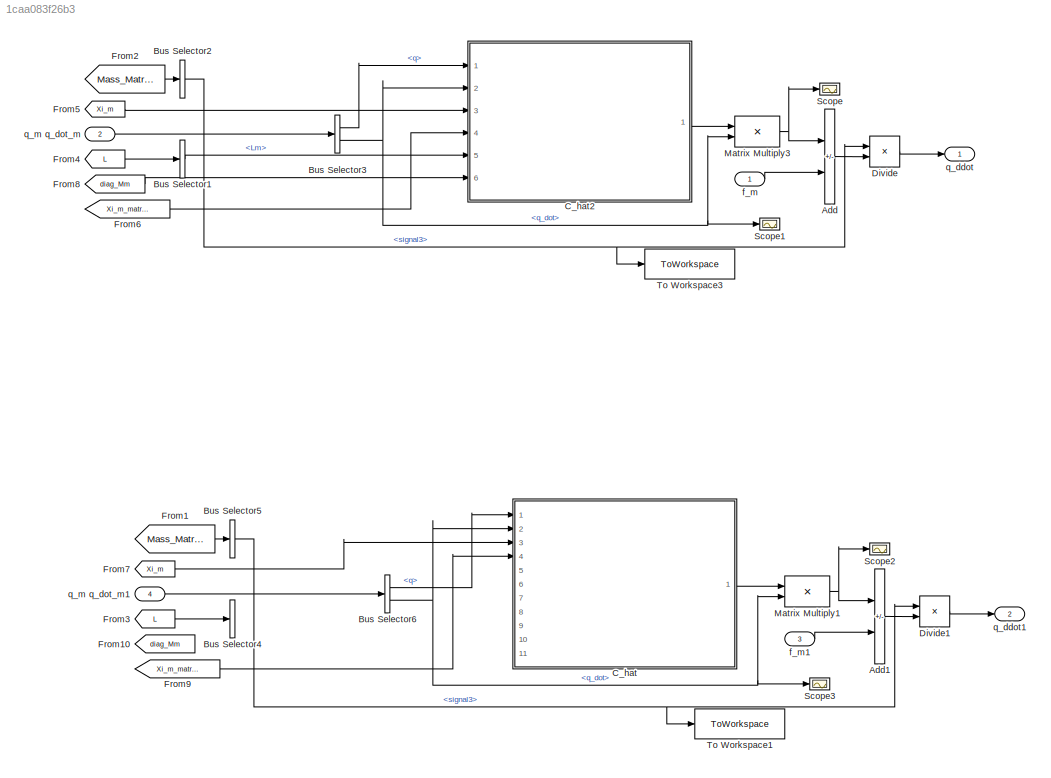
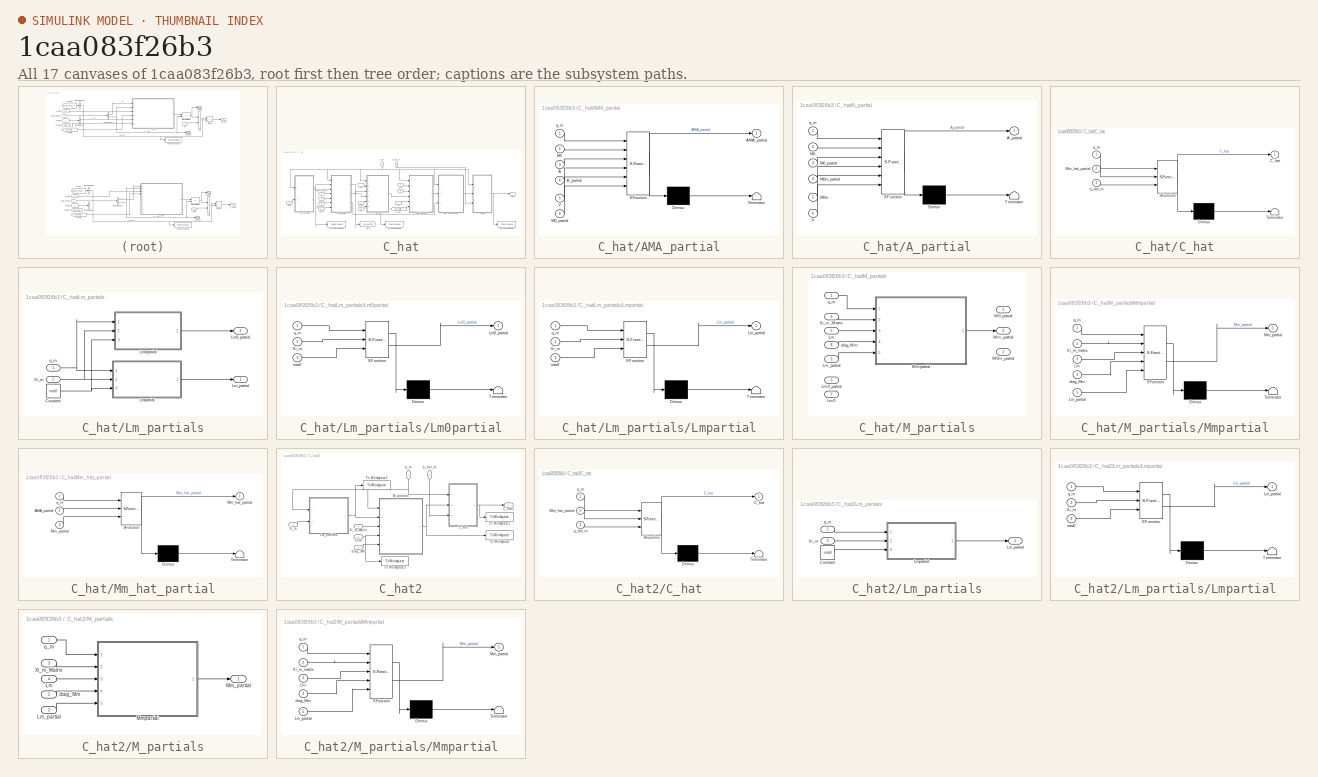
[diagram: thumbnail index - all 17 canvases of the model, root first then tree order]
MODEL slx_1caa083f26b3
KIND model
CONFIG AbsTol = auto
CONFIG EnableMultiTasking = off
CONFIG FixedStep = auto
CONFIG MaxStep = auto
CONFIG MinStep = auto
CONFIG RelTol = 1e-3
CONFIG SampleTimeConstraint = Unconstrained
CONFIG SolverName = VariableStepAuto
CONFIG StartTime = 0.0
CONFIG StopTime = 10.0
BLOCK [Sum] Add
  IconShape = rectangular
  Inputs = -+
  Ports = [2, 1]
BLOCK [Sum] Add1
  IconShape = rectangular
  Inputs = -+
  Ports = [2, 1]
BLOCK [BusSelector] Bus Selector1
  OutputSignals = Lm
  Ports = [1, 1]
BLOCK [BusSelector] Bus Selector2
  OutputSignals = signal3
  Ports = [1, 1]
BLOCK [BusSelector] Bus Selector3
  OutputSignals = q,q_dot
  Ports = [1, 2]
BLOCK [BusSelector] Bus Selector4
  OutputSignals = Lm
  Ports = [1, 1]
BLOCK [BusSelector] Bus Selector5
  OutputSignals = signal3
  Ports = [1, 1]
BLOCK [BusSelector] Bus Selector6
  OutputSignals = q,q_dot
  Ports = [1, 2]
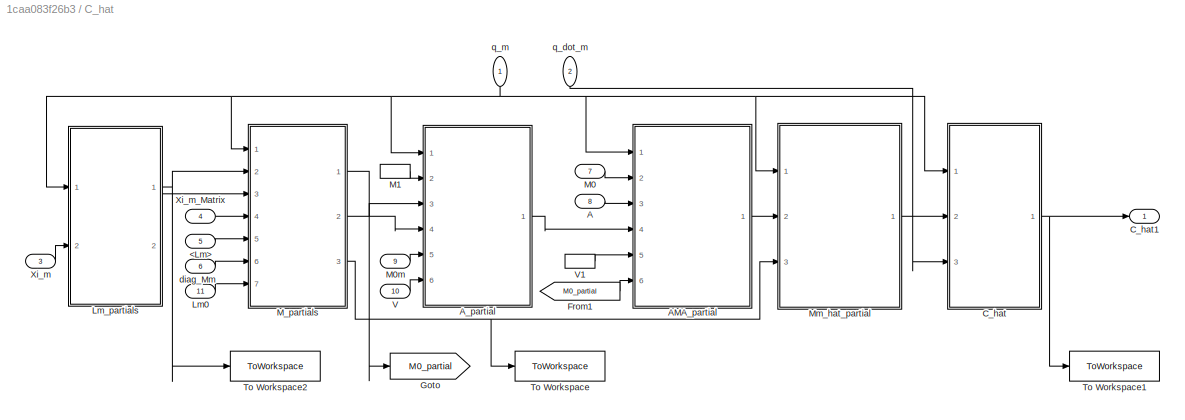
BLOCK [SubSystem] C_hat
  Ports = [11, 1]
  RequestExecContextInheritance = off
BLOCK [Inport] C_hat/<Lm>
  Port = 5
BLOCK [Inport] C_hat/A
  Port = 8
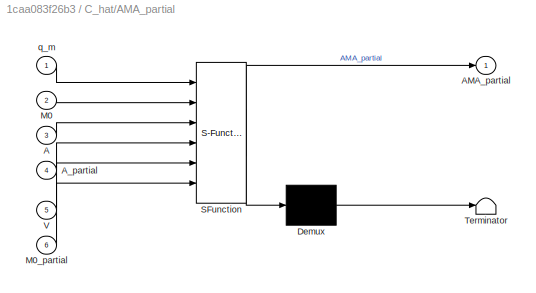
BLOCK [SubSystem] C_hat/AMA_partial
  ErrorFcn = Stateflow.Translate.translate
  PermitHierarchicalResolution = ExplicitOnly
  Ports = [6, 1]
  RequestExecContextInheritance = off
  SFBlockType = MATLAB Function
  TreatAsAtomicUnit = on
BLOCK [Demux] C_hat/AMA_partial/ Demux 
  Outputs = 1
  Ports = [1, 1]
BLOCK [S-Function] C_hat/AMA_partial/ SFunction 
  EnableBusSupport = on
  FunctionName = sf_sfun
  PortCounts = [6 2]
  Ports = [6, 2]
  SFcnIsStateOwnerBlock = off
  SFunctionDeploymentMode = off
  Tag = Stateflow S-Function 44
BLOCK [Terminator] C_hat/AMA_partial/ Terminator 
BLOCK [Inport] C_hat/AMA_partial/A
  Port = 3
BLOCK [Outport] C_hat/AMA_partial/AMA_partial
BLOCK [Inport] C_hat/AMA_partial/A_partial
  Port = 4
BLOCK [Inport] C_hat/AMA_partial/M0
  Port = 2
BLOCK [Inport] C_hat/AMA_partial/M0_partial
  Port = 6
BLOCK [Inport] C_hat/AMA_partial/V
  Port = 5
BLOCK [Inport] C_hat/AMA_partial/q_m
BLOCK [SubSystem] C_hat/A_partial
  ErrorFcn = Stateflow.Translate.translate
  PermitHierarchicalResolution = ExplicitOnly
  Ports = [6, 1]
  RequestExecContextInheritance = off
  SFBlockType = MATLAB Function
  TreatAsAtomicUnit = on
BLOCK [Demux] C_hat/A_partial/ Demux 
  Outputs = 1
  Ports = [1, 1]
BLOCK [S-Function] C_hat/A_partial/ SFunction 
  EnableBusSupport = on
  FunctionName = sf_sfun
  PortCounts = [6 2]
  Ports = [6, 2]
  SFcnIsStateOwnerBlock = off
  SFunctionDeploymentMode = off
  Tag = Stateflow S-Function 42
BLOCK [Terminator] C_hat/A_partial/ Terminator 
BLOCK [Outport] C_hat/A_partial/A_partial
BLOCK [Inport] C_hat/A_partial/M0
  Port = 2
BLOCK [Inport] C_hat/A_partial/M0_partial
  Port = 3
BLOCK [Inport] C_hat/A_partial/M0m
  Port = 5
BLOCK [Inport] C_hat/A_partial/M0m_partial
  Port = 4
BLOCK [Inport] C_hat/A_partial/V
  Port = 6
BLOCK [Inport] C_hat/A_partial/q_m
BLOCK [SubSystem] C_hat/C_hat
  ErrorFcn = Stateflow.Translate.translate
  PermitHierarchicalResolution = ExplicitOnly
  Ports = [3, 1]
  RequestExecContextInheritance = off
  SFBlockType = MATLAB Function
  TreatAsAtomicUnit = on
BLOCK [Demux] C_hat/C_hat/ Demux 
  Outputs = 1
  Ports = [1, 1]
BLOCK [S-Function] C_hat/C_hat/ SFunction 
  EnableBusSupport = on
  FunctionName = sf_sfun
  PortCounts = [3 2]
  Ports = [3, 2]
  SFcnIsStateOwnerBlock = off
  SFunctionDeploymentMode = off
  Tag = Stateflow S-Function 1
BLOCK [Terminator] C_hat/C_hat/ Terminator 
BLOCK [Outport] C_hat/C_hat/C_hat
BLOCK [Inport] C_hat/C_hat/Mm_hat_partial
  Port = 2
BLOCK [Inport] C_hat/C_hat/q_dot_m
  Port = 3
BLOCK [Inport] C_hat/C_hat/q_m
BLOCK [Outport] C_hat/C_hat1
BLOCK [From] C_hat/From1
  GotoTag = M0_partial
BLOCK [Goto] C_hat/Goto
  GotoTag = M0_partial
BLOCK [Inport] C_hat/Lm0
  Port = 11
BLOCK [SubSystem] C_hat/Lm_partials
  Ports = [2, 2]
  RequestExecContextInheritance = off
BLOCK [Constant] C_hat/Lm_partials/Constant
  Value = iota0
BLOCK [Outport] C_hat/Lm_partials/Lm0_partial
  Port = 2
BLOCK [SubSystem] C_hat/Lm_partials/Lm0partial
  ErrorFcn = Stateflow.Translate.translate
  PermitHierarchicalResolution = ExplicitOnly
  Ports = [3, 1]
  RequestExecContextInheritance = off
  SFBlockType = MATLAB Function
  TreatAsAtomicUnit = on
BLOCK [Demux] C_hat/Lm_partials/Lm0partial/ Demux 
  Outputs = 1
  Ports = [1, 1]
BLOCK [S-Function] C_hat/Lm_partials/Lm0partial/ SFunction 
  EnableBusSupport = on
  FunctionName = sf_sfun
  PortCounts = [3 2]
  Ports = [3, 2]
  SFcnIsStateOwnerBlock = off
  SFunctionDeploymentMode = off
  Tag = Stateflow S-Function 31
BLOCK [Terminator] C_hat/Lm_partials/Lm0partial/ Terminator 
BLOCK [Outport] C_hat/Lm_partials/Lm0partial/Lm0_partial
BLOCK [Inport] C_hat/Lm_partials/Lm0partial/Xi_m
  Port = 2
BLOCK [Inport] C_hat/Lm_partials/Lm0partial/iota0
  Port = 3
BLOCK [Inport] C_hat/Lm_partials/Lm0partial/q_m
BLOCK [Outport] C_hat/Lm_partials/Lm_partial
BLOCK [SubSystem] C_hat/Lm_partials/Lmpartial
  ErrorFcn = Stateflow.Translate.translate
  PermitHierarchicalResolution = ExplicitOnly
  Ports = [3, 1]
  RequestExecContextInheritance = off
  SFBlockType = MATLAB Function
  TreatAsAtomicUnit = on
BLOCK [Demux] C_hat/Lm_partials/Lmpartial/ Demux 
  Outputs = 1
  Ports = [1, 1]
BLOCK [S-Function] C_hat/Lm_partials/Lmpartial/ SFunction 
  EnableBusSupport = on
  FunctionName = sf_sfun
  PortCounts = [3 2]
  Ports = [3, 2]
  SFcnIsStateOwnerBlock = off
  SFunctionDeploymentMode = off
  Tag = Stateflow S-Function 2
BLOCK [Terminator] C_hat/Lm_partials/Lmpartial/ Terminator 
BLOCK [Outport] C_hat/Lm_partials/Lmpartial/Lm_partial
BLOCK [Inport] C_hat/Lm_partials/Lmpartial/Xi_m
  Port = 2
BLOCK [Inport] C_hat/Lm_partials/Lmpartial/iota0
  Port = 3
BLOCK [Inport] C_hat/Lm_partials/Lmpartial/q_m
BLOCK [Inport] C_hat/Lm_partials/Xi_m
  Port = 2
BLOCK [Inport] C_hat/Lm_partials/q_m
BLOCK [Inport] C_hat/M0
  Port = 7
BLOCK [Inport] C_hat/M0m
  Port = 9
BLOCK [InportShadow] C_hat/M1
  Port = 7
BLOCK [SubSystem] C_hat/M_partials
  Ports = [7, 3]
  RequestExecContextInheritance = off
BLOCK [Inport] C_hat/M_partials/Lm
  Port = 5
BLOCK [Inport] C_hat/M_partials/Lm0
  Port = 7
BLOCK [Inport] C_hat/M_partials/Lm0_partial
  Port = 3
BLOCK [Inport] C_hat/M_partials/Lm_partial
  Port = 2
BLOCK [Outport] C_hat/M_partials/M0_partial
BLOCK [Outport] C_hat/M_partials/M0m_partial
  Port = 2
BLOCK [Outport] C_hat/M_partials/Mm_partial
  Port = 3
BLOCK [SubSystem] C_hat/M_partials/Mmpartial
  ErrorFcn = Stateflow.Translate.translate
  PermitHierarchicalResolution = ExplicitOnly
  Ports = [5, 1]
  RequestExecContextInheritance = off
  SFBlockType = MATLAB Function
  TreatAsAtomicUnit = on
BLOCK [Demux] C_hat/M_partials/Mmpartial/ Demux 
  Outputs = 1
  Ports = [1, 1]
BLOCK [S-Function] C_hat/M_partials/Mmpartial/ SFunction 
  EnableBusSupport = on
  FunctionName = sf_sfun
  PortCounts = [5 2]
  Ports = [5, 2]
  SFcnIsStateOwnerBlock = off
  SFunctionDeploymentMode = off
  Tag = Stateflow S-Function 3
BLOCK [Terminator] C_hat/M_partials/Mmpartial/ Terminator 
BLOCK [Inport] C_hat/M_partials/Mmpartial/Lm
  Port = 3
BLOCK [Inport] C_hat/M_partials/Mmpartial/Lm_partial
  Port = 5
BLOCK [Outport] C_hat/M_partials/Mmpartial/Mm_partial
BLOCK [Inport] C_hat/M_partials/Mmpartial/Xi_m_matrix
  Port = 2
BLOCK [Inport] C_hat/M_partials/Mmpartial/diag_Mm
  Port = 4
BLOCK [Inport] C_hat/M_partials/Mmpartial/q_m
BLOCK [Inport] C_hat/M_partials/Xi_m_Matrix
  NameLocation = top
  Port = 4
BLOCK [Inport] C_hat/M_partials/diag_Mm
  Port = 6
BLOCK [Inport] C_hat/M_partials/q_m
BLOCK [SubSystem] C_hat/Mm_hat_partial
  ErrorFcn = Stateflow.Translate.translate
  PermitHierarchicalResolution = ExplicitOnly
  Ports = [3, 1]
  RequestExecContextInheritance = off
  SFBlockType = MATLAB Function
  TreatAsAtomicUnit = on
BLOCK [Demux] C_hat/Mm_hat_partial/ Demux 
  Outputs = 1
  Ports = [1, 1]
BLOCK [S-Function] C_hat/Mm_hat_partial/ SFunction 
  EnableBusSupport = on
  FunctionName = sf_sfun
  PortCounts = [3 2]
  Ports = [3, 2]
  SFcnIsStateOwnerBlock = off
  SFunctionDeploymentMode = off
  Tag = Stateflow S-Function 45
BLOCK [Terminator] C_hat/Mm_hat_partial/ Terminator 
BLOCK [Inport] C_hat/Mm_hat_partial/AMA_partial
  Port = 2
BLOCK [Outport] C_hat/Mm_hat_partial/Mm_hat_partial
BLOCK [Inport] C_hat/Mm_hat_partial/Mm_partial
  Port = 3
BLOCK [Inport] C_hat/Mm_hat_partial/q_m
BLOCK [ToWorkspace] C_hat/To Workspace
  FixptAsFi = on
  MaxDataPoints = inf
  Ports = [1]
  SampleTime = -1
  SaveFormat = Timeseries
  VariableName = mpart
BLOCK [ToWorkspace] C_hat/To Workspace1
  FixptAsFi = on
  MaxDataPoints = inf
  Ports = [1]
  SampleTime = -1
  SaveFormat = Timeseries
  VariableName = chat
BLOCK [ToWorkspace] C_hat/To Workspace2
  FixptAsFi = on
  MaxDataPoints = inf
  Ports = [1]
  SampleTime = -1
  SaveFormat = Timeseries
  VariableName = Lpart
BLOCK [Inport] C_hat/V
  Port = 10
BLOCK [InportShadow] C_hat/V1
  Port = 10
BLOCK [Inport] C_hat/Xi_m
  NameLocation = right
  Port = 3
BLOCK [Inport] C_hat/Xi_m_Matrix
  Port = 4
BLOCK [Inport] C_hat/diag_Mm
  Port = 6
BLOCK [Inport] C_hat/q_dot_m
  NameLocation = left
  Port = 2
BLOCK [Inport] C_hat/q_m
  NameLocation = left
BLOCK [SubSystem] C_hat2
  Ports = [6, 1]
  RequestExecContextInheritance = off
BLOCK [Inport] C_hat2/<Lm>
  Port = 5
BLOCK [SubSystem] C_hat2/C_hat
  ErrorFcn = Stateflow.Translate.translate
  PermitHierarchicalResolution = ExplicitOnly
  Ports = [3, 1]
  RequestExecContextInheritance = off
  SFBlockType = MATLAB Function
  TreatAsAtomicUnit = on
BLOCK [Demux] C_hat2/C_hat/ Demux 
  Outputs = 1
  Ports = [1, 1]
BLOCK [S-Function] C_hat2/C_hat/ SFunction 
  EnableBusSupport = on
  FunctionName = sf_sfun
  PortCounts = [3 2]
  Ports = [3, 2]
  SFcnIsStateOwnerBlock = off
  SFunctionDeploymentMode = off
  Tag = Stateflow S-Function 4
BLOCK [Terminator] C_hat2/C_hat/ Terminator 
BLOCK [Outport] C_hat2/C_hat/C_hat
BLOCK [Inport] C_hat2/C_hat/Mm_hat_partial
  Port = 2
BLOCK [Inport] C_hat2/C_hat/q_dot_m
  Port = 3
BLOCK [Inport] C_hat2/C_hat/q_m
BLOCK [Outport] C_hat2/C_hat1
BLOCK [SubSystem] C_hat2/Lm_partials
  Ports = [2, 1]
  RequestExecContextInheritance = off
BLOCK [Constant] C_hat2/Lm_partials/Constant
  Value = iota0
BLOCK [Outport] C_hat2/Lm_partials/Lm_partial
BLOCK [SubSystem] C_hat2/Lm_partials/Lmpartial
  ErrorFcn = Stateflow.Translate.translate
  PermitHierarchicalResolution = ExplicitOnly
  Ports = [3, 1]
  RequestExecContextInheritance = off
  SFBlockType = MATLAB Function
  TreatAsAtomicUnit = on
BLOCK [Demux] C_hat2/Lm_partials/Lmpartial/ Demux 
  Outputs = 1
  Ports = [1, 1]
BLOCK [S-Function] C_hat2/Lm_partials/Lmpartial/ SFunction 
  EnableBusSupport = on
  FunctionName = sf_sfun
  PortCounts = [3 2]
  Ports = [3, 2]
  SFcnIsStateOwnerBlock = off
  SFunctionDeploymentMode = off
  Tag = Stateflow S-Function 5
BLOCK [Terminator] C_hat2/Lm_partials/Lmpartial/ Terminator 
BLOCK [Outport] C_hat2/Lm_partials/Lmpartial/Lm_partial
BLOCK [Inport] C_hat2/Lm_partials/Lmpartial/Xi_m
  Port = 2
BLOCK [Inport] C_hat2/Lm_partials/Lmpartial/iota0
  Port = 3
BLOCK [Inport] C_hat2/Lm_partials/Lmpartial/q_m
BLOCK [Inport] C_hat2/Lm_partials/Xi_m
  Port = 2
BLOCK [Inport] C_hat2/Lm_partials/q_m
BLOCK [SubSystem] C_hat2/M_partials
  Ports = [5, 1]
  RequestExecContextInheritance = off
BLOCK [Inport] C_hat2/M_partials/Lm
  Port = 4
BLOCK [Inport] C_hat2/M_partials/Lm_partial
  Port = 2
BLOCK [Outport] C_hat2/M_partials/Mm_partial
BLOCK [SubSystem] C_hat2/M_partials/Mmpartial
  ErrorFcn = Stateflow.Translate.translate
  PermitHierarchicalResolution = ExplicitOnly
  Ports = [5, 1]
  RequestExecContextInheritance = off
  SFBlockType = MATLAB Function
  TreatAsAtomicUnit = on
BLOCK [Demux] C_hat2/M_partials/Mmpartial/ Demux 
  Outputs = 1
  Ports = [1, 1]
BLOCK [S-Function] C_hat2/M_partials/Mmpartial/ SFunction 
  EnableBusSupport = on
  FunctionName = sf_sfun
  PortCounts = [5 2]
  Ports = [5, 2]
  SFcnIsStateOwnerBlock = off
  SFunctionDeploymentMode = off
  Tag = Stateflow S-Function 6
BLOCK [Terminator] C_hat2/M_partials/Mmpartial/ Terminator 
BLOCK [Inport] C_hat2/M_partials/Mmpartial/Lm
  Port = 3
BLOCK [Inport] C_hat2/M_partials/Mmpartial/Lm_partial
  Port = 5
BLOCK [Outport] C_hat2/M_partials/Mmpartial/Mm_partial
BLOCK [Inport] C_hat2/M_partials/Mmpartial/Xi_m_matrix
  Port = 2
BLOCK [Inport] C_hat2/M_partials/Mmpartial/diag_Mm
  Port = 4
BLOCK [Inport] C_hat2/M_partials/Mmpartial/q_m
BLOCK [Inport] C_hat2/M_partials/Xi_m_Matrix
  NameLocation = top
  Port = 3
BLOCK [Inport] C_hat2/M_partials/diag_Mm
  Port = 5
BLOCK [Inport] C_hat2/M_partials/q_m
BLOCK [ToWorkspace] C_hat2/To Workspace
  FixptAsFi = on
  MaxDataPoints = inf
  Ports = [1]
  SampleTime = -1
  SaveFormat = Timeseries
  VariableName = mpart
BLOCK [ToWorkspace] C_hat2/To Workspace1
  FixptAsFi = on
  MaxDataPoints = inf
  Ports = [1]
  SampleTime = -1
  SaveFormat = Timeseries
  VariableName = chat
BLOCK [ToWorkspace] C_hat2/To Workspace2
  FixptAsFi = on
  MaxDataPoints = inf
  Ports = [1]
  SampleTime = -1
  SaveFormat = Timeseries
  VariableName = Lpart
BLOCK [ToWorkspace] C_hat2/To Workspace3
  FixptAsFi = on
  MaxDataPoints = inf
  Ports = [1]
  SampleTime = -1
  SaveFormat = Timeseries
  VariableName = L
BLOCK [Inport] C_hat2/Xi_m
  NameLocation = right
  Port = 3
BLOCK [Inport] C_hat2/Xi_m_Matrix
  Port = 4
BLOCK [Inport] C_hat2/diag_Mm
  Port = 6
BLOCK [Inport] C_hat2/q_dot_m
  NameLocation = left
  Port = 2
BLOCK [Inport] C_hat2/q_m
  NameLocation = left
BLOCK [Product] Divide
  Inputs = /*
  Multiplication = Matrix(*)
  Ports = [2, 1]
BLOCK [Product] Divide1
  Inputs = /*
  Multiplication = Matrix(*)
  Ports = [2, 1]
BLOCK [From] From1
  GotoTag = Mass_Matrix
  TagVisibility = global
BLOCK [From] From10
  GotoTag = diag_Mm
  TagVisibility = global
BLOCK [From] From2
  GotoTag = Mass_Matrix
  TagVisibility = global
BLOCK [From] From3
  GotoTag = L
  TagVisibility = global
BLOCK [From] From4
  GotoTag = L
  TagVisibility = global
BLOCK [From] From5
  GotoTag = Xi_m
  TagVisibility = global
BLOCK [From] From6
  GotoTag = Xi_m_matrix
  TagVisibility = global
BLOCK [From] From7
  GotoTag = Xi_m
  TagVisibility = global
BLOCK [From] From8
  GotoTag = diag_Mm
  TagVisibility = global
BLOCK [From] From9
  GotoTag = Xi_m_matrix
  TagVisibility = global
BLOCK [Product] Matrix Multiply1
  Multiplication = Matrix(*)
  Ports = [2, 1]
BLOCK [Product] Matrix Multiply3
  Multiplication = Matrix(*)
  Ports = [2, 1]
BLOCK [Scope] Scope
  Floating = off
  NumInputPorts = 1
  Ports = [1]
  ScopeSpecificationString = Simulink.scopes.TimeScopeBlockCfg('CurrentConfiguration', extmgr.ConfigurationSet(extmgr.Configuration('Core','General UI',true),extmgr.Configuration('Core','Source UI',true),extmgr.Configuration('Sources','WiredSimulink',true,'DataLoggingVariableName','ScopeData1'),extmgr.Configuration('Visuals','Time Domain',true,'SerializedDisplays',{struct('MinYLimReal','-22.62607','MaxYLimReal','9.26302','YLa...<+1400ch>
BLOCK [Scope] Scope1
  Floating = off
  NumInputPorts = 1
  Ports = [1]
  ScopeSpecificationString = Simulink.scopes.TimeScopeBlockCfg('CurrentConfiguration', extmgr.ConfigurationSet(extmgr.Configuration('Core','General UI',true),extmgr.Configuration('Core','Source UI',true),extmgr.Configuration('Sources','WiredSimulink',true),extmgr.Configuration('Visuals','Time Domain',true,'SerializedDisplays',{struct('MinYLimReal','2.3125','MaxYLimReal','4.1875','YLabelReal','','MinYLimMag','2.3125','MaxYLimM...<+1331ch>
BLOCK [Scope] Scope2
  Floating = off
  NumInputPorts = 1
  Ports = [1]
  ScopeSpecificationString = Simulink.scopes.TimeScopeBlockCfg('CurrentConfiguration', extmgr.ConfigurationSet(extmgr.Configuration('Core','General UI',true),extmgr.Configuration('Core','Source UI',true),extmgr.Configuration('Sources','WiredSimulink',true,'DataLoggingVariableName','ScopeData2'),extmgr.Configuration('Visuals','Time Domain',true,'SerializedDisplays',{struct('MinYLimReal','-22.62607','MaxYLimReal','9.26302','YLa...<+1400ch>
BLOCK [Scope] Scope3
  Floating = off
  NumInputPorts = 1
  Ports = [1]
  ScopeSpecificationString = Simulink.scopes.TimeScopeBlockCfg('CurrentConfiguration', extmgr.ConfigurationSet(extmgr.Configuration('Core','General UI',true),extmgr.Configuration('Core','Source UI',true),extmgr.Configuration('Sources','WiredSimulink',true,'DataLoggingVariableName','ScopeData3'),extmgr.Configuration('Visuals','Time Domain',true,'SerializedDisplays',{struct('MinYLimReal','2.3125','MaxYLimReal','4.1875','YLabelR...<+1370ch>
BLOCK [ToWorkspace] To Workspace1
  FixptAsFi = on
  MaxDataPoints = inf
  Ports = [1]
  SampleTime = -1
  SaveFormat = Timeseries
  VariableName = mhat1
BLOCK [ToWorkspace] To Workspace3
  FixptAsFi = on
  MaxDataPoints = inf
  Ports = [1]
  SampleTime = -1
  SaveFormat = Timeseries
  VariableName = mhat
BLOCK [Inport] f_m
BLOCK [Inport] f_m1
  Port = 3
BLOCK [Outport] q_ddot
BLOCK [Outport] q_ddot1
  Port = 2
BLOCK [Inport] q_m q_dot_m
  Port = 2
BLOCK [Inport] q_m q_dot_m1
  Port = 4
LINE Add1:1 -> Divide1:2
LINE Add:1 -> Divide:2
LINE Bus Selector1:1 -> C_hat2:5
NET Bus Selector2:1 -> Divide:1, To Workspace3:1
LINE Bus Selector3:1 -> C_hat2:1
NET Bus Selector3:2 -> C_hat2:2, Matrix Multiply3:2, Scope1:1
NET Bus Selector5:1 -> Divide1:1, To Workspace1:1
LINE Bus Selector6:1 -> C_hat:1
NET Bus Selector6:2 -> C_hat:2, Matrix Multiply1:2, Scope3:1
LINE C_hat/<Lm>:1 -> C_hat/M_partials:5
LINE C_hat/A:1 -> C_hat/AMA_partial:3
LINE C_hat/AMA_partial:1 -> C_hat/Mm_hat_partial:2
LINE C_hat/A_partial:1 -> C_hat/AMA_partial:4
NET C_hat/C_hat:1 -> C_hat/C_hat1:1, C_hat/To Workspace1:1
LINE C_hat/From1:1 -> C_hat/AMA_partial:6
LINE C_hat/Lm0:1 -> C_hat/M_partials:7
NET C_hat/Lm_partials/Constant:1 -> C_hat/Lm_partials/Lm0partial:3, C_hat/Lm_partials/Lmpartial:3
LINE C_hat/Lm_partials/Lm0partial:1 -> C_hat/Lm_partials/Lm0_partial:1
LINE C_hat/Lm_partials/Lmpartial:1 -> C_hat/Lm_partials/Lm_partial:1
NET C_hat/Lm_partials/Xi_m:1 -> C_hat/Lm_partials/Lm0partial:2, C_hat/Lm_partials/Lmpartial:2
NET C_hat/Lm_partials/q_m:1 -> C_hat/Lm_partials/Lm0partial:1, C_hat/Lm_partials/Lmpartial:1
NET C_hat/Lm_partials:1 -> C_hat/M_partials:2, C_hat/To Workspace2:1
LINE C_hat/Lm_partials:2 -> C_hat/M_partials:3
LINE C_hat/M0:1 -> C_hat/AMA_partial:2
LINE C_hat/M0m:1 -> C_hat/A_partial:5
LINE C_hat/M1:1 -> C_hat/A_partial:2
LINE C_hat/M_partials/Lm:1 -> C_hat/M_partials/Mmpartial:3
LINE C_hat/M_partials/Lm_partial:1 -> C_hat/M_partials/Mmpartial:5
LINE C_hat/M_partials/Mmpartial:1 -> C_hat/M_partials/Mm_partial:1
LINE C_hat/M_partials/Xi_m_Matrix:1 -> C_hat/M_partials/Mmpartial:2
LINE C_hat/M_partials/diag_Mm:1 -> C_hat/M_partials/Mmpartial:4
LINE C_hat/M_partials/q_m:1 -> C_hat/M_partials/Mmpartial:1
NET C_hat/M_partials:1 -> C_hat/A_partial:3, C_hat/Goto:1
LINE C_hat/M_partials:2 -> C_hat/A_partial:4
NET C_hat/M_partials:3 -> C_hat/Mm_hat_partial:3, C_hat/To Workspace:1
LINE C_hat/Mm_hat_partial:1 -> C_hat/C_hat:2
LINE C_hat/V1:1 -> C_hat/AMA_partial:5
LINE C_hat/V:1 -> C_hat/A_partial:6
LINE C_hat/Xi_m:1 -> C_hat/Lm_partials:2
LINE C_hat/Xi_m_Matrix:1 -> C_hat/M_partials:4
LINE C_hat/diag_Mm:1 -> C_hat/M_partials:6
LINE C_hat/q_dot_m:1 -> C_hat/C_hat:3
NET C_hat/q_m:1 -> C_hat/AMA_partial:1, C_hat/A_partial:1, C_hat/C_hat:1, C_hat/Lm_partials:1, C_hat/M_partials:1, C_hat/Mm_hat_partial:1
NET C_hat2/<Lm>:1 -> C_hat2/M_partials:4, C_hat2/To Workspace3:1
NET C_hat2/C_hat:1 -> C_hat2/C_hat1:1, C_hat2/To Workspace1:1
LINE C_hat2/Lm_partials/Constant:1 -> C_hat2/Lm_partials/Lmpartial:3
LINE C_hat2/Lm_partials/Lmpartial:1 -> C_hat2/Lm_partials/Lm_partial:1
LINE C_hat2/Lm_partials/Xi_m:1 -> C_hat2/Lm_partials/Lmpartial:2
LINE C_hat2/Lm_partials/q_m:1 -> C_hat2/Lm_partials/Lmpartial:1
NET C_hat2/Lm_partials:1 -> C_hat2/M_partials:2, C_hat2/To Workspace2:1
LINE C_hat2/M_partials/Lm:1 -> C_hat2/M_partials/Mmpartial:3
LINE C_hat2/M_partials/Lm_partial:1 -> C_hat2/M_partials/Mmpartial:5
LINE C_hat2/M_partials/Mmpartial:1 -> C_hat2/M_partials/Mm_partial:1
LINE C_hat2/M_partials/Xi_m_Matrix:1 -> C_hat2/M_partials/Mmpartial:2
LINE C_hat2/M_partials/diag_Mm:1 -> C_hat2/M_partials/Mmpartial:4
LINE C_hat2/M_partials/q_m:1 -> C_hat2/M_partials/Mmpartial:1
NET C_hat2/M_partials:1 -> C_hat2/C_hat:2, C_hat2/To Workspace:1
LINE C_hat2/Xi_m:1 -> C_hat2/Lm_partials:2
LINE C_hat2/Xi_m_Matrix:1 -> C_hat2/M_partials:3
LINE C_hat2/diag_Mm:1 -> C_hat2/M_partials:5
LINE C_hat2/q_dot_m:1 -> C_hat2/C_hat:3
NET C_hat2/q_m:1 -> C_hat2/C_hat:1, C_hat2/Lm_partials:1, C_hat2/M_partials:1
LINE C_hat2:1 -> Matrix Multiply3:1
LINE C_hat:1 -> Matrix Multiply1:1
LINE Divide1:1 -> q_ddot1:1
LINE Divide:1 -> q_ddot:1
LINE From1:1 -> Bus Selector5:1
LINE From2:1 -> Bus Selector2:1
LINE From3:1 -> Bus Selector4:1
LINE From4:1 -> Bus Selector1:1
LINE From5:1 -> C_hat2:3
LINE From6:1 -> C_hat2:4
LINE From7:1 -> C_hat:3
LINE From8:1 -> C_hat2:6
LINE From9:1 -> C_hat:4
NET Matrix Multiply1:1 -> Add1:1, Scope2:1
NET Matrix Multiply3:1 -> Add:1, Scope:1
LINE f_m1:1 -> Add1:2
LINE f_m:1 -> Add:2
LINE q_m q_dot_m1:1 -> Bus Selector6:1
LINE q_m q_dot_m:1 -> Bus Selector3:1
note: NET lines group one-source signal fan-out (src -> all destinations, sorted); 1:1 wires keep LINE
CHART C_hat/AMA_partial states=1 transitions=1
  STATE_LABEL 'eML_blk_kernel()'
  STATE_LABEL 'SCRIPT:\nfunction AMA_partial = AMA_partial(q_m,M0,A,A_partial,V,M0_partial)\n% Calculates the C_hat_m matrix from base pose and arm joint angles\n\nn=length(q_m);\nb=length(V);\n\n% find the temp intermediate term\nAMA_partial=zeros(n,n,n);\nfor i=1:n\n    AMA_partial(1:n,1:n,i)=transpose(A_partial(1:b,1:n,i))*M0*A+transpose(A)*M0_partial(1:b,1:b,i)*A+transpose(A)*M0*A_partial(1:b,1:n,i); %calcualte the de...<+76ch>'
CHART C_hat/Mm_hat_partial states=1 transitions=1
  STATE_LABEL 'eML_blk_kernel()'
  STATE_LABEL "SCRIPT:\nfunction Mm_hat_partial = Mm_hat_partial(q_m, AMA_partial, Mm_partial)\n% Calculates the C_hat_m matrix from base pose and arm joint angles\n\nn=length(q_m);\n\n% find the generalized arm mass matrix'x derivative to joint angles\nMm_hat_partial=zeros(n,n,n);\nfor i=1:n\n    Mm_hat_partial(1:n,1:n,i)=Mm_partial(1:n,1:n,i)-AMA_partial(1:n,1:n,i); %calcualte the derivative of augmented arm mass matri...<+36ch>"
CHART C_hat/C_hat states=1 transitions=1
  STATE_LABEL 'eML_blk_kernel()'
  STATE_LABEL 'SCRIPT:\nfunction C_hat = C_hat(q_m, Mm_hat_partial,q_dot_m)\n% Calculates the C_hat_m matrix from base pose and arm joint angles\n\nn=length(q_m);\n\n\n% Calculate C_hat matrix\nC_temp1=zeros(n,n);\nC_temp2=zeros(n,n);\nC_hat=zeros(n,n);\nfor i=1:n\n    C_temp1=C_temp1+squeeze(Mm_hat_partial(1:n,1:n,i)).*q_dot_m(i); % nxn by scalar\n    C_temp2(i,1:n)=0.5*transpose(q_dot_m)*squeeze(Mm_hat_partial(1:n,1:n,i));...<+46ch>'
CHART C_hat/Lm_partials/Lmpartial states=1 transitions=1
  STATE_LABEL 'eML_blk_kernel()'
  STATE_LABEL 'SCRIPT:\nfunction Lm_partial  = Lm_partial(q_m,Xi_m,iota0)\n% Calculates the C_hat_m matrix from base pose and arm joint angles\n\nn=length(q_m);\n\n% Find partial of Lm0 to joint angles\nLm_partial=zeros(6*n,6*n,n); % 6nx6xn\nfor i=1:n\n    Lm_partial(:,:,i)=zeros(6*n,6*n);\n    for j=2:n\n        for k=2:n\n            if j>i && i>=k\n                Lm_partial(6*(j-1)+1:6*j,6*(k-2)+1:6*(k-1),i)=Ad_partial(j...<+343ch>'
CHART C_hat/M_partials/Mmpartial states=1 transitions=1
  STATE_LABEL 'eML_blk_kernel()'
  STATE_LABEL "SCRIPT:\nfunction Mm_partial = Mm_partial(q_m,Xi_m_matrix,Lm,diag_Mm,Lm_partial)\n% Calculates the C_hat_m matrix from base pose and arm joint angles\n\nn=length(q_m);\n\n% find the non-generalized arm mass matrix'x derivative to joint angles\nMm_partial=zeros(n,n,n);\nfor i=1:n\n    temp=   transpose(Lm_partial(1:6*n,1:6*n,i))*diag_Mm*Lm  +   transpose(Lm)*diag_Mm*Lm_partial(1:6*n,1:6*n,i);\n    Mm_partial...<+146ch>"
CHART C_hat2/C_hat states=1 transitions=1
  STATE_LABEL 'eML_blk_kernel()'
  STATE_LABEL 'SCRIPT:\nfunction C_hat = C_hat(q_m, Mm_hat_partial,q_dot_m)\n% Calculates the C_hat_m matrix from base pose and arm joint angles\n\nn=length(q_m);\n\n\n% Calculate C_hat matrix\nC_temp1=zeros(n,n);\nC_temp2=zeros(n,n);\nC_hat=zeros(n,n);\nfor i=1:n\n    C_temp1=C_temp1+squeeze(Mm_hat_partial(1:n,1:n,i)).*q_dot_m(i); % nxn by scalar\n    C_temp2(i,1:n)=0.5*transpose(q_dot_m)*squeeze(Mm_hat_partial(1:n,1:n,i));...<+46ch>'
CHART C_hat2/Lm_partials/Lmpartial states=1 transitions=1
  STATE_LABEL 'eML_blk_kernel()'
  STATE_LABEL 'SCRIPT:\nfunction Lm_partial  = Lm_partial(q_m,Xi_m,iota0)\n% Calculates the C_hat_m matrix from base pose and arm joint angles\n\nn=length(q_m);\n\n% Find partial of Lm0 to joint angles\nLm_partial=zeros(6*n,6*n,n); % 6nx6xn\nfor i=1:n\n    Lm_partial(:,:,i)=zeros(6*n,6*n);\n    for j=2:n\n        for k=2:n\n            if j>i && i>=k\n                Lm_partial(6*(j-1)+1:6*j,6*(k-2)+1:6*(k-1),i)=Ad_partial(j...<+343ch>'
CHART C_hat2/M_partials/Mmpartial states=1 transitions=1
  STATE_LABEL 'eML_blk_kernel()'
  STATE_LABEL "SCRIPT:\nfunction Mm_partial = Mm_partial(q_m,Xi_m_matrix,Lm,diag_Mm,Lm_partial)\n% Calculates the C_hat_m matrix from base pose and arm joint angles\n\nn=length(q_m);\n\n% find the non-generalized arm mass matrix'x derivative to joint angles\nMm_partial=zeros(n,n,n);\nfor i=1:n\n    temp=   transpose(Lm_partial(1:6*n,1:6*n,i))*diag_Mm*Lm  +   transpose(Lm)*diag_Mm*Lm_partial(1:6*n,1:6*n,i);\n    Mm_partial...<+146ch>"
CHART C_hat/Lm_partials/Lm0partial states=1 transitions=1
  STATE_LABEL 'eML_blk_kernel()'
  STATE_LABEL 'SCRIPT:\nfunction Lm0_partial = Lm0_partial(q_m,Xi_m,iota0)\n% Calculates the C_hat_m matrix from base pose and arm joint angles\n\nn=length(q_m);\n\n% Find partial of Lm to joint angles\nLm0_partial=zeros(6*n,6,n); % 6nx6xn\nfor i=1:n\n    for j=1:n\n        Lm0_partial(6*(j-1)+1:6*j,1:6,i)=Ad_partial(j,1,i,Xi_m,q_m,iota0); % equation 114 of TRO paper\n    end\nend\n\n%%%%%%%%%%%%%%%%%%%%%%%%%%%%%%%%%%%%%%%%%%...<+97ch>'
CHART C_hat/A_partial states=1 transitions=1
  STATE_LABEL 'eML_blk_kernel()'
  STATE_LABEL 'SCRIPT:\nfunction A_partial = A_partial(q_m,M0,M0_partial,M0m_partial,M0m,V)\n% Calculates the C_hat_m matrix from base pose and arm joint angles\n\nn=length(q_m);\nb=length(V);\n\n% Find partial of connection A to each joint angle\nA_partial=zeros(b,n,n);\n\ntemp1=zeros(b,n);\ntemp2=zeros(b,n);\ntemp3=zeros(b,n);\n\nfor i=1:n\n    temp1=M0\\M0_partial(1:b,1:b,i);\n    temp2=M0\\M0m;\n    temp3=M0\\M0m_partial(1:b,1:...<+68ch>'
CHART  states=0 transitions=0
CHART  states=0 transitions=0
CHART  states=0 transitions=0
CHART  states=0 transitions=0
CHART  states=0 transitions=0
CHART  states=0 transitions=0
CHART  states=0 transitions=0
CHART  states=0 transitions=0
CHART  states=0 transitions=0
CHART  states=0 transitions=0
